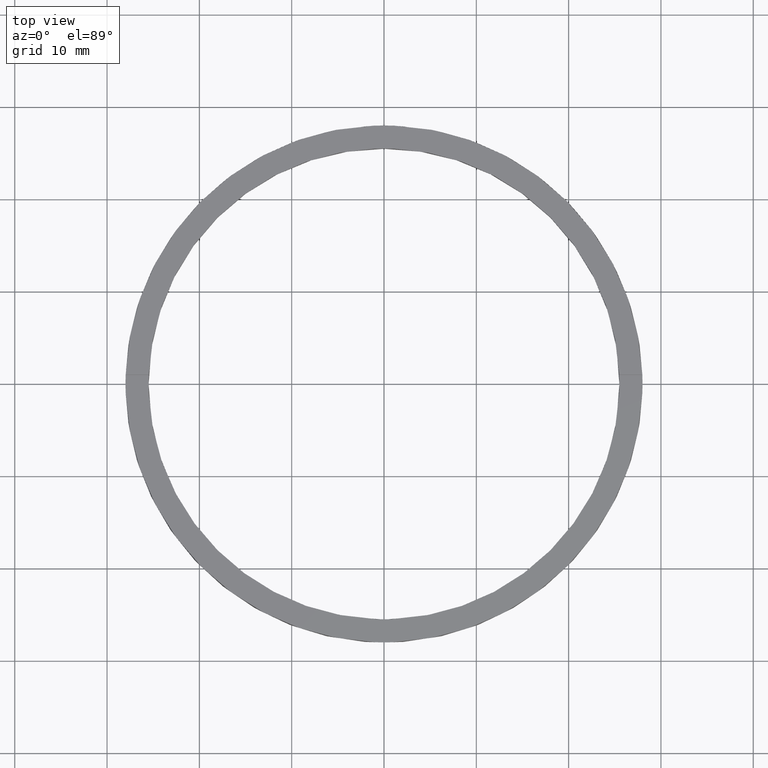
[diagram: clean part render]
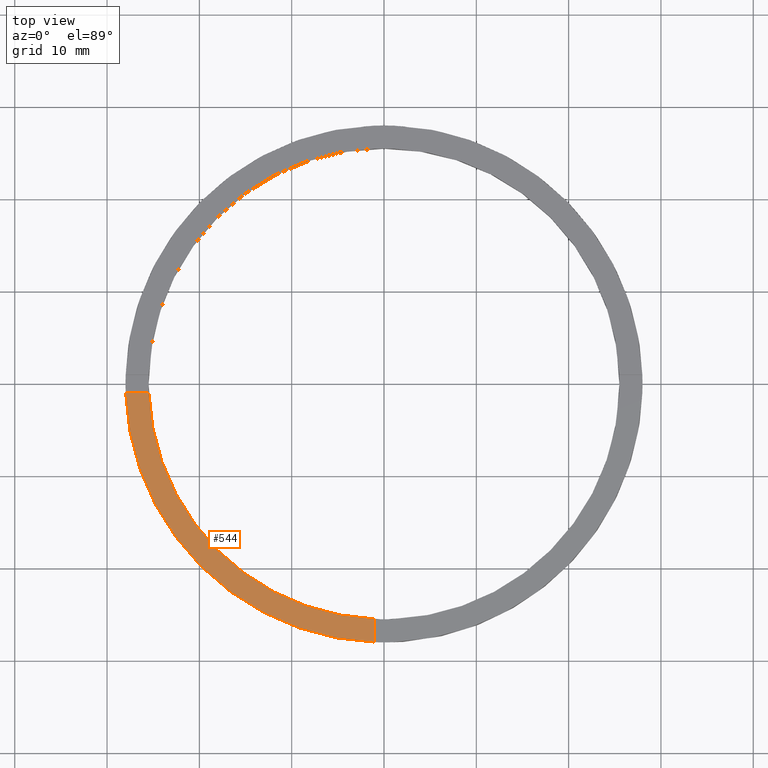
[diagram: same view with one face highlighted and labeled with its STEP entity id]
A machine part, top view. The second image highlights one B-rep face of the part: STEP entity #544.
In plain terms, the highlighted planar face has unit normal (0, 0, 1).
Its self-contained STEP definition (entity closure, byte-faithful):
#1 = ORIENTED_EDGE ( 'NONE', *, *, #582, .T. ) ;
#16 = VERTEX_POINT ( 'NONE', #401 ) ;
#30 = DIRECTION ( 'NONE',  ( 1.000000000000000000, 0.000000000000000000, 0.000000000000000000 ) ) ;
#49 = EDGE_CURVE ( 'NONE', #70, #355, #715, .T. ) ;
#58 = CIRCLE ( 'NONE', #383, 25.50000000000000000 ) ;
#64 = FACE_OUTER_BOUND ( 'NONE', #241, .T. ) ;
#70 = VERTEX_POINT ( 'NONE', #256 ) ;
#98 = DIRECTION ( 'NONE',  ( 0.000000000000000000, 0.000000000000000000, 1.000000000000000000 ) ) ;
#108 = LINE ( 'NONE', #306, #367 ) ;
#161 = DIRECTION ( 'NONE',  ( 1.000000000000000000, 1.734723475976807341E-16, -0.000000000000000000 ) ) ;
#177 = CARTESIAN_POINT ( 'NONE',  ( 0.000000000000000000, 0.000000000000000000, 2.500000000000000000 ) ) ;
#190 = AXIS2_PLACEMENT_3D ( 'NONE', #177, #672, #581 ) ;
#229 = CARTESIAN_POINT ( 'NONE',  ( 0.000000000000000000, 0.000000000000000000, 2.500000000000000000 ) ) ;
#241 = EDGE_LOOP ( 'NONE', ( #467, #723, #279, #1 ) ) ;
#256 = CARTESIAN_POINT ( 'NONE',  ( -27.98213715926644340, -1.000000000000026867, 2.500000000000000000 ) ) ;
#260 = EDGE_CURVE ( 'NONE', #468, #16, #108, .T. ) ;
#276 = CARTESIAN_POINT ( 'NONE',  ( 0.000000000000000000, 0.000000000000000000, 2.500000000000000000 ) ) ;
#279 = ORIENTED_EDGE ( 'NONE', *, *, #49, .F. ) ;
#306 = CARTESIAN_POINT ( 'NONE',  ( -1.000000000000161204, -18.00000000000018119, 2.500000000000000000 ) ) ;
#355 = VERTEX_POINT ( 'NONE', #418 ) ;
#360 = DIRECTION ( 'NONE',  ( 0.000000000000000000, 0.000000000000000000, 1.000000000000000000 ) ) ;
#367 = VECTOR ( 'NONE', #541, 1000.000000000000000 ) ;
#383 = AXIS2_PLACEMENT_3D ( 'NONE', #276, #98, #30 ) ;
#401 = CARTESIAN_POINT ( 'NONE',  ( -1.000000000000159872, -27.98213715926643985, 2.500000000000000000 ) ) ;
#415 = CARTESIAN_POINT ( 'NONE',  ( -1.000000000000160316, -25.48038461248180653, 2.500000000000000000 ) ) ;
#418 = CARTESIAN_POINT ( 'NONE',  ( -25.48038461248181008, -1.000000000000026423, 2.500000000000000000 ) ) ;
#431 = AXIS2_PLACEMENT_3D ( 'NONE', #229, #360, #701 ) ;
#457 = PLANE ( 'NONE',  #190 ) ;
#467 = ORIENTED_EDGE ( 'NONE', *, *, #260, .F. ) ;
#468 = VERTEX_POINT ( 'NONE', #415 ) ;
#541 = DIRECTION ( 'NONE',  ( 1.301042606982605567E-16, -1.000000000000000000, 0.000000000000000000 ) ) ;
#544 = ADVANCED_FACE ( 'NONE', ( #64 ), #457, .T. ) ;
#563 = CIRCLE ( 'NONE', #431, 28.00000000000000000 ) ;
#581 = DIRECTION ( 'NONE',  ( 1.000000000000000000, 0.000000000000000000, -0.000000000000000000 ) ) ;
#582 = EDGE_CURVE ( 'NONE', #70, #16, #563, .T. ) ;
#613 = VECTOR ( 'NONE', #161, 1000.000000000000000 ) ;
#672 = DIRECTION ( 'NONE',  ( 0.000000000000000000, 0.000000000000000000, 1.000000000000000000 ) ) ;
#691 = CARTESIAN_POINT ( 'NONE',  ( -18.00000000000018474, -1.000000000000025091, 2.500000000000000000 ) ) ;
#701 = DIRECTION ( 'NONE',  ( 1.000000000000000000, 0.000000000000000000, 0.000000000000000000 ) ) ;
#715 = LINE ( 'NONE', #691, #613 ) ;
#723 = ORIENTED_EDGE ( 'NONE', *, *, #774, .F. ) ;
#774 = EDGE_CURVE ( 'NONE', #355, #468, #58, .T. ) ;